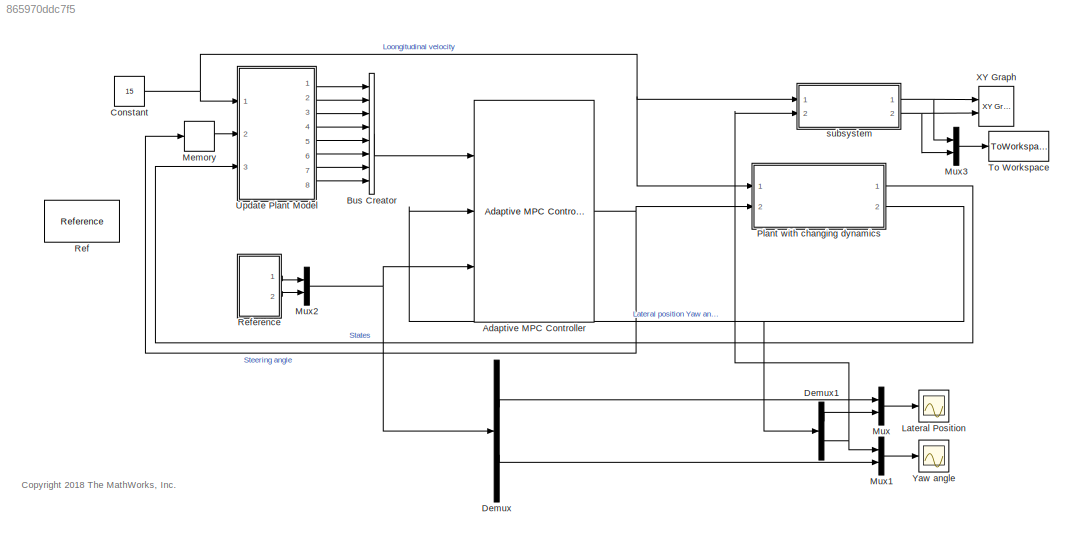
MODEL slx_865970ddc7f5
KIND model
CONFIG AbsTol = auto
CONFIG EnableMultiTasking = off
CONFIG FixedStep = 0.01
CONFIG MaxStep = auto
CONFIG MinStep = auto
CONFIG RelTol = 1e-3
CONFIG SampleTimeConstraint = Unconstrained
CONFIG Solver = VariableStepAuto
CONFIG SolverName = VariableStepAuto
CONFIG StartTime = 0.0
CONFIG StopTime = 50
BLOCK [Reference] Adaptive MPC Controller  REF=mpclib/Adaptive MPC Controller  (lib defined in mdl_ae329e0e0455)
  Ports = [3, 1]
  SCDEnableBlockLinearizationSpecification = on
  SourceBlock = mpclib/Adaptive MPC Controller
  SourceProductBaseCode = MP
  SourceProductName = Model Predictive Control Toolbox
  SourceType = Adaptive MPC
BLOCK [BusCreator] Bus Creator
  DisplayOption = bar
  InheritFromInputs = on
  Inputs = 8
  Ports = [8, 1]
BLOCK [Constant] Constant
  Value = 15
BLOCK [Demux] Demux
  DisplayOption = bar
  Outputs = 2
  Ports = [1, 2]
BLOCK [Demux] Demux1
  DisplayOption = bar
  Outputs = 2
  Ports = [1, 2]
BLOCK [Scope] Lateral Position
  Floating = off
  NumInputPorts = 1
  Ports = [1]
  ScopeSpecificationString = Simulink.scopes.TimeScopeBlockCfg('CurrentConfiguration', extmgr.ConfigurationSet(extmgr.Configuration('Core','General UI',true),extmgr.Configuration('Core','Source UI',true),extmgr.Configuration('Sources','WiredSimulink',true),extmgr.Configuration('Visuals','Time Domain',true,'SerializedDisplays',{struct('MinYLimReal','-25.28018','MaxYLimReal','227.52163','YLabelReal','','MinYLimMag','0.00000','M...<+1396ch>
BLOCK [Memory] Memory
BLOCK [Mux] Mux
  DisplayOption = bar
  Inputs = 2
  Ports = [2, 1]
BLOCK [Mux] Mux1
  DisplayOption = bar
  Inputs = 2
  Ports = [2, 1]
BLOCK [Mux] Mux2
  DisplayOption = bar
  Inputs = 2
  Ports = [2, 1]
BLOCK [Mux] Mux3
  DisplayOption = bar
  Inputs = 2
  Ports = [2, 1]
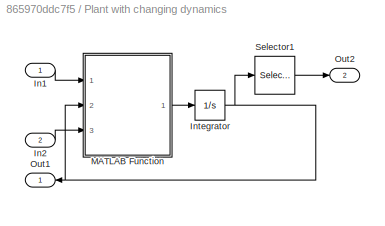
BLOCK [SubSystem] Plant with changing dynamics
  Ports = [2, 2]
  RequestExecContextInheritance = off
BLOCK [Inport] Plant with changing dynamics/In1
  IconDisplay = Port number
BLOCK [Inport] Plant with changing dynamics/In2
  IconDisplay = Port number
  Port = 2
BLOCK [Integrator] Plant with changing dynamics/Integrator
  Ports = [1, 1]
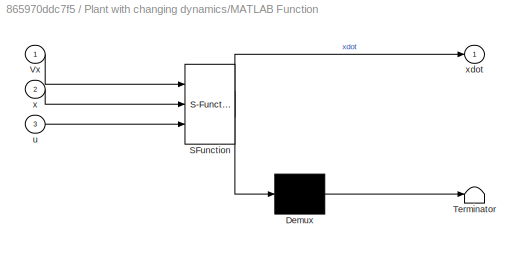
BLOCK [SubSystem] Plant with changing dynamics/MATLAB Function
  ErrorFcn = Stateflow.Translate.translate
  PermitHierarchicalResolution = ExplicitOnly
  Ports = [3, 1]
  RequestExecContextInheritance = off
  SFBlockType = MATLAB Function
  TreatAsAtomicUnit = on
BLOCK [Demux] Plant with changing dynamics/MATLAB Function/ Demux 
  Outputs = 1
  Ports = [1, 1]
BLOCK [S-Function] Plant with changing dynamics/MATLAB Function/ SFunction 
  EnableBusSupport = on
  FunctionName = sf_sfun
  PortCounts = [3 2]
  Ports = [3, 2]
  SFcnIsStateOwnerBlock = off
  SFunctionDeploymentMode = off
  Tag = Stateflow S-Function MPC_for_sim 1
BLOCK [Terminator] Plant with changing dynamics/MATLAB Function/ Terminator 
BLOCK [Inport] Plant with changing dynamics/MATLAB Function/Vx
  IconDisplay = Port number
BLOCK [Inport] Plant with changing dynamics/MATLAB Function/u
  IconDisplay = Port number
  Port = 3
BLOCK [Inport] Plant with changing dynamics/MATLAB Function/x
  IconDisplay = Port number
  Port = 2
BLOCK [Outport] Plant with changing dynamics/MATLAB Function/xdot
  IconDisplay = Port number
BLOCK [Outport] Plant with changing dynamics/Out1
  IconDisplay = Port number
BLOCK [Outport] Plant with changing dynamics/Out2
  IconDisplay = Port number
  Port = 2
BLOCK [Selector] Plant with changing dynamics/Selector1
  IndexOptions = Index vector (dialog)
  Indices = [4 2]
  InputPortWidth = 4
  OutputSizes = 1
  Ports = [1, 1]
BLOCK [Reference] Ref  REF=Meldas_library/Reference
  Commented = on
  Ports = [0, 1]
  SourceBlock = Meldas_library/Reference
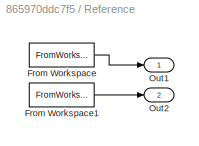
BLOCK [SubSystem] Reference
  Ports = [0, 2]
  RequestExecContextInheritance = off
BLOCK [FromWorkspace] Reference/From Workspace
  OutDataTypeStr = double
  SampleTime = 0
  VariableName = [x; y]'
  ZeroCross = on
BLOCK [FromWorkspace] Reference/From Workspace1
  OutDataTypeStr = double
  SampleTime = 0
  VariableName = [x; theta_rad]'
  ZeroCross = on
BLOCK [Outport] Reference/Out1
  IconDisplay = Port number
BLOCK [Outport] Reference/Out2
  IconDisplay = Port number
  Port = 2
BLOCK [ToWorkspace] To Workspace
  FixptAsFi = on
  MaxDataPoints = inf
  Ports = [1]
  SampleTime = -1
  Save2DSignal = 3-D array (concatenate along third dimension)
  VariableName = position
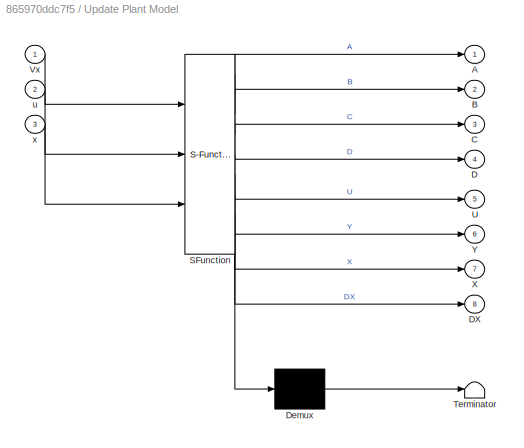
BLOCK [SubSystem] Update Plant Model
  ErrorFcn = Stateflow.Translate.translate
  PermitHierarchicalResolution = ExplicitOnly
  Ports = [3, 8]
  RequestExecContextInheritance = off
  SFBlockType = MATLAB Function
  TreatAsAtomicUnit = on
BLOCK [Demux] Update Plant Model/ Demux 
  Outputs = 1
  Ports = [1, 1]
BLOCK [S-Function] Update Plant Model/ SFunction 
  EnableBusSupport = on
  FunctionName = sf_sfun
  PortCounts = [3 9]
  Ports = [3, 9]
  SFcnIsStateOwnerBlock = off
  SFunctionDeploymentMode = off
  Tag = Stateflow S-Function MPC_for_sim 2
BLOCK [Terminator] Update Plant Model/ Terminator 
BLOCK [Outport] Update Plant Model/A
  IconDisplay = Port number
BLOCK [Outport] Update Plant Model/B
  IconDisplay = Port number
  Port = 2
BLOCK [Outport] Update Plant Model/C
  IconDisplay = Port number
  Port = 3
BLOCK [Outport] Update Plant Model/D
  IconDisplay = Port number
  Port = 4
BLOCK [Outport] Update Plant Model/DX
  IconDisplay = Port number
  Port = 8
BLOCK [Outport] Update Plant Model/U
  IconDisplay = Port number
  Port = 5
BLOCK [Inport] Update Plant Model/Vx
  IconDisplay = Port number
BLOCK [Outport] Update Plant Model/X
  IconDisplay = Port number
  Port = 7
BLOCK [Outport] Update Plant Model/Y
  IconDisplay = Port number
  Port = 6
BLOCK [Inport] Update Plant Model/u
  IconDisplay = Port number
  Port = 2
BLOCK [Inport] Update Plant Model/x
  IconDisplay = Port number
  Port = 3
BLOCK [Reference] XY Graph  REF=simulink/Sinks/XY Graph
  Ports = [2]
  SourceBlock = simulink/Sinks/XY Graph
  SourceProductBaseCode = SL
  SourceProductName = Simulink
  SourceType = XY scope.
BLOCK [Scope] Yaw angle
  Floating = off
  NumInputPorts = 1
  Ports = [1]
  ScopeSpecificationString = Simulink.scopes.TimeScopeBlockCfg('CurrentConfiguration', extmgr.ConfigurationSet(extmgr.Configuration('Core','General UI',true),extmgr.Configuration('Core','Source UI',true),extmgr.Configuration('Sources','WiredSimulink',true,'DataLoggingVariableName','ScopeData1'),extmgr.Configuration('Visuals','Time Domain',true,'SerializedDisplays',{struct('MinYLimReal','-1.57827','MaxYLimReal','1.57827','YLab...<+1448ch>
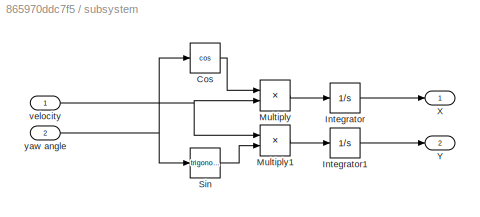
BLOCK [SubSystem] subsystem 
  Ports = [2, 2]
  RequestExecContextInheritance = off
BLOCK [Trigonometry] subsystem /Cos
  Operator = cos
  Ports = [1, 1]
BLOCK [Integrator] subsystem /Integrator
  Ports = [1, 1]
BLOCK [Integrator] subsystem /Integrator1
  Ports = [1, 1]
BLOCK [Product] subsystem /Multiply
  InputSameDT = off
  OutDataTypeStr = Inherit: Inherit via internal rule
  Ports = [2, 1]
  RndMeth = Floor
  SaturateOnIntegerOverflow = off
BLOCK [Product] subsystem /Multiply1
  InputSameDT = off
  OutDataTypeStr = Inherit: Inherit via internal rule
  Ports = [2, 1]
  RndMeth = Floor
  SaturateOnIntegerOverflow = off
BLOCK [Trigonometry] subsystem /Sin
  Ports = [1, 1]
BLOCK [Outport] subsystem /X
  IconDisplay = Port number
BLOCK [Outport] subsystem /Y
  IconDisplay = Port number
  Port = 2
BLOCK [Inport] subsystem /velocity
  IconDisplay = Port number
BLOCK [Inport] subsystem /yaw angle
  IconDisplay = Port number
  Port = 2
ANNOTATION (root): <copyright redacted>
NET Adaptive MPC Controller:1 -> Memory:1, Plant with changing dynamics:2
LINE Bus Creator:1 -> Adaptive MPC Controller:1
NET Constant:1 -> Plant with changing dynamics:1, Update Plant Model:1, subsystem :1
LINE Demux1:1 -> Mux:2
NET Demux1:2 -> Mux1:1, subsystem :2
LINE Demux:1 -> Mux:1
LINE Demux:2 -> Mux1:2
LINE Memory:1 -> Update Plant Model:2
LINE Mux1:1 -> Yaw angle:1
NET Mux2:1 -> Adaptive MPC Controller:3, Demux:1
LINE Mux3:1 -> To Workspace:1
LINE Mux:1 -> Lateral Position:1
LINE Plant with changing dynamics/In1:1 -> Plant with changing dynamics/MATLAB Function:1
LINE Plant with changing dynamics/In2:1 -> Plant with changing dynamics/MATLAB Function:3
NET Plant with changing dynamics/Integrator:1 -> Plant with changing dynamics/MATLAB Function:2, Plant with changing dynamics/Out1:1, Plant with changing dynamics/Selector1:1
LINE Plant with changing dynamics/MATLAB Function:1 -> Plant with changing dynamics/Integrator:1
LINE Plant with changing dynamics/Selector1:1 -> Plant with changing dynamics/Out2:1
LINE Plant with changing dynamics:1 -> Update Plant Model:3
NET Plant with changing dynamics:2 -> Adaptive MPC Controller:2, Demux1:1
LINE Reference/From Workspace1:1 -> Reference/Out2:1
LINE Reference/From Workspace:1 -> Reference/Out1:1
LINE Reference:1 -> Mux2:1
LINE Reference:2 -> Mux2:2
LINE Update Plant Model:1 -> Bus Creator:1
LINE Update Plant Model:2 -> Bus Creator:2
LINE Update Plant Model:3 -> Bus Creator:3
LINE Update Plant Model:4 -> Bus Creator:4
LINE Update Plant Model:5 -> Bus Creator:5
LINE Update Plant Model:6 -> Bus Creator:6
LINE Update Plant Model:7 -> Bus Creator:7
LINE Update Plant Model:8 -> Bus Creator:8
LINE subsystem /Cos:1 -> subsystem /Multiply:1
LINE subsystem /Integrator1:1 -> subsystem /Y:1
LINE subsystem /Integrator:1 -> subsystem /X:1
LINE subsystem /Multiply1:1 -> subsystem /Integrator1:1
LINE subsystem /Multiply:1 -> subsystem /Integrator:1
LINE subsystem /Sin:1 -> subsystem /Multiply1:2
NET subsystem /velocity:1 -> subsystem /Multiply1:1, subsystem /Multiply:2
NET subsystem /yaw angle:1 -> subsystem /Cos:1, subsystem /Sin:1
NET subsystem :1 -> Mux3:1, XY Graph:1
NET subsystem :2 -> Mux3:2, XY Graph:2
note: NET lines group one-source signal fan-out (src -> all destinations, sorted); 1:1 wires keep LINE
CHART Plant with
changing dynamics/MATLAB Function states=1 transitions=1
  STATE_LABEL 'eML_blk_kernel()'
  STATE_LABEL "SCRIPT:\nfunction xdot = fcn(Vx,x,u)\n\n% Model parameters\nm = 1575;\nIz = 2875;\nlf = 1.2;\nlr = 1.6;\nCf = 19000;\nCr = 33000;\n\n% Continuous-time model\nA = [-(2*Cf+2*Cr)/m/Vx, 0, -Vx-(2*Cf*lf-2*Cr*lr)/m/Vx, 0;\n     0, 0, 1, 0;\n     -(2*Cf*lf-2*Cr*lr)/Iz/Vx, 0, -(2*Cf*lf^2+2*Cr*lr^2)/Iz/Vx, 0;\n     1, Vx, 0, 0];\nB = [2*Cf/m 0 2*Cf*lf/Iz 0]';   \nC = [0 0 0 1; 0 1 0 0];\nD = zeros(2,1);\nxdot = A*x + B*u;\n%y...<+14ch>"
CHART Update Plant Model states=1 transitions=1
  STATE_LABEL 'eML_blk_kernel()'
  STATE_LABEL "SCRIPT:\nfunction [A,B,C,D,U,Y,X,DX] = fcn(Vx,u,x)\n% Sample time\nTs = 0.1;\n\n% Model parameters\nm = 1575;\nIz = 2875;\nlf = 1.2;\nlr = 1.6;\nCf = 19000;\nCr = 33000;\n\n% Continuous-time model\nAc = [-(2*Cf+2*Cr)/m/Vx, 0, -Vx-(2*Cf*lf-2*Cr*lr)/m/Vx, 0;\n     0, 0, 1, 0;\n     -(2*Cf*lf-2*Cr*lr)/Iz/Vx, 0, -(2*Cf*lf^2+2*Cr*lr^2)/Iz/Vx, 0;\n     1, Vx, 0, 0];\nBc = [2*Cf/m 0 2*Cf*lf/Iz 0]';   \nCc = [0 0 0 1; 0 1 0...<+278ch>"
